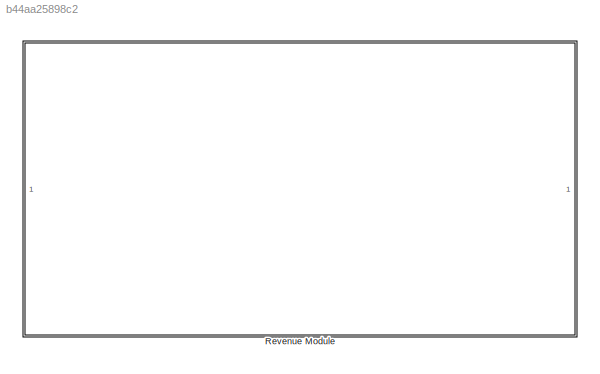
MODEL slx_b44aa25898c2
KIND library
CONFIG AbsTol = auto
CONFIG EnableMultiTasking = off
CONFIG FixedStep = auto
CONFIG MaxStep = auto
CONFIG MinStep = auto
CONFIG RelTol = 1e-3
CONFIG SampleTimeConstraint = Unconstrained
CONFIG SolverName = VariableStepAuto
CONFIG StartTime = 0.0
CONFIG StopTime = 10.0
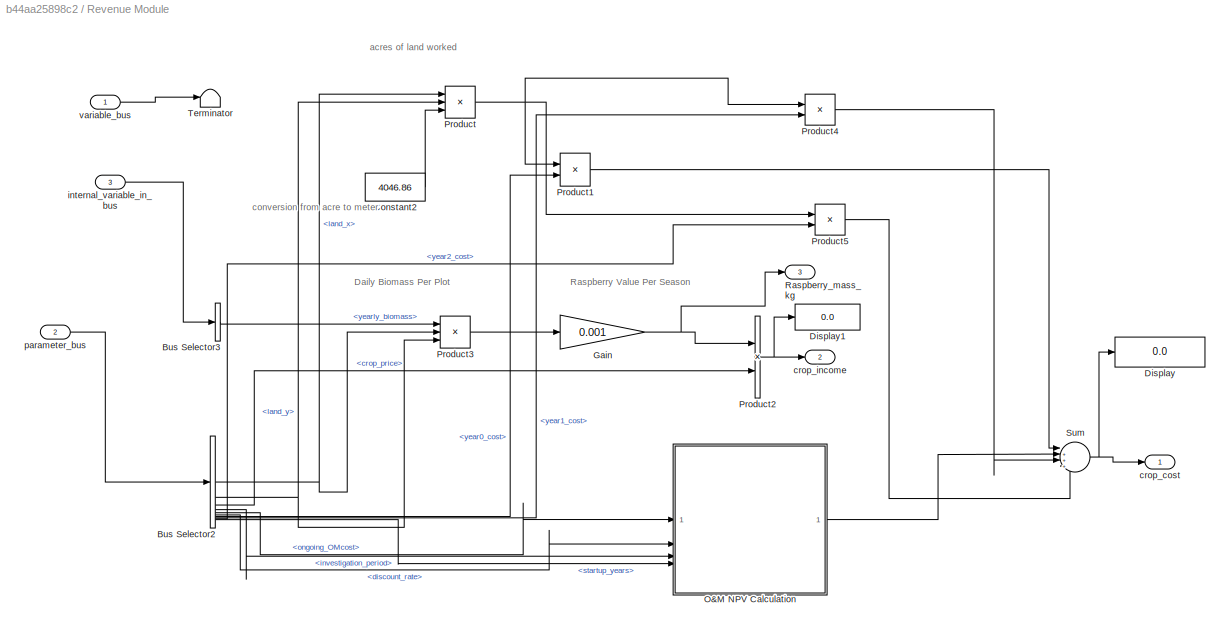
BLOCK [SubSystem] Revenue Module
BLOCK [BusSelector] Revenue Module/Bus Selector2
  OutputSignals = land_x,land_y,crop_price,investigation_period,ongoing_OMcost,discount_rate,year0_cost,year1_cost,year2_cost,startup_years
BLOCK [BusSelector] Revenue Module/Bus Selector3
  OutputSignals = yearly_biomass
BLOCK [Constant] Revenue Module/Constant2
  Value = 4046.86
BLOCK [Display] Revenue Module/Display
  Decimation = 1
BLOCK [Display] Revenue Module/Display1
  Decimation = 1
BLOCK [Gain] Revenue Module/Gain
  Gain = 0.001
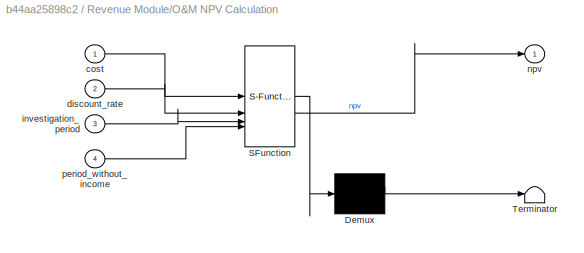
BLOCK [SubSystem] Revenue Module/O&M NPV Calculation
  ErrorFcn = Stateflow.Translate.translate
  PermitHierarchicalResolution = ExplicitOnly
  SFBlockType = MATLAB Function
  TreatAsAtomicUnit = on
BLOCK [Demux] Revenue Module/O&M NPV Calculation/ Demux 
  Outputs = 1
BLOCK [S-Function] Revenue Module/O&M NPV Calculation/ SFunction 
  EnableBusSupport = off
  FunctionName = sf_sfun
  PortCounts = [4 2]
  SFcnIsStateOwnerBlock = off
  SFunctionDeploymentMode = off
  Tag = Stateflow S-Function 4
BLOCK [Terminator] Revenue Module/O&M NPV Calculation/ Terminator 
BLOCK [Inport] Revenue Module/O&M NPV Calculation/cost
BLOCK [Inport] Revenue Module/O&M NPV Calculation/discount_rate
  Port = 2
BLOCK [Inport] Revenue Module/O&M NPV Calculation/investigation_period
  Port = 3
BLOCK [Outport] Revenue Module/O&M NPV Calculation/npv
BLOCK [Inport] Revenue Module/O&M NPV Calculation/period_without_income
  Port = 4
BLOCK [Product] Revenue Module/Product
  Inputs = **/
BLOCK [Product] Revenue Module/Product1
BLOCK [Product] Revenue Module/Product2
BLOCK [Product] Revenue Module/Product3
  Inputs = 3
BLOCK [Product] Revenue Module/Product4
BLOCK [Product] Revenue Module/Product5
BLOCK [Outport] Revenue Module/Raspberry_mass_kg
  Port = 3
BLOCK [Sum] Revenue Module/Sum
  Inputs = |++++
BLOCK [Terminator] Revenue Module/Terminator
BLOCK [Outport] Revenue Module/crop_cost
BLOCK [Outport] Revenue Module/crop_income
  Port = 2
BLOCK [Inport] Revenue Module/internal_variable_in_bus
  Port = 3
BLOCK [Inport] Revenue Module/parameter_bus
  Port = 2
BLOCK [Inport] Revenue Module/variable_bus
ANNOTATION Revenue Module: Daily Biomass Per Plot
ANNOTATION Revenue Module: Raspberry Value Per Season
ANNOTATION Revenue Module: acres of land worked
ANNOTATION Revenue Module: conversion from acre to meter
NET Revenue Module/Bus Selector2:1 -> Revenue Module/Product3:2, Revenue Module/Product:1
LINE Revenue Module/Bus Selector2:10 -> Revenue Module/O&M NPV Calculation:4
NET Revenue Module/Bus Selector2:2 -> Revenue Module/Product3:3, Revenue Module/Product:2
LINE Revenue Module/Bus Selector2:3 -> Revenue Module/Product2:2
LINE Revenue Module/Bus Selector2:4 -> Revenue Module/O&M NPV Calculation:3
LINE Revenue Module/Bus Selector2:5 -> Revenue Module/O&M NPV Calculation:1
LINE Revenue Module/Bus Selector2:6 -> Revenue Module/O&M NPV Calculation:2
LINE Revenue Module/Bus Selector2:7 -> Revenue Module/Product1:2
LINE Revenue Module/Bus Selector2:8 -> Revenue Module/Product4:2
LINE Revenue Module/Bus Selector2:9 -> Revenue Module/Product5:2
LINE Revenue Module/Bus Selector3:1 -> Revenue Module/Product3:1
LINE Revenue Module/Constant2:1 -> Revenue Module/Product:3
NET Revenue Module/Gain:1 -> Revenue Module/Product2:1, Revenue Module/Raspberry_mass_kg:1
LINE Revenue Module/O&M NPV Calculation:1 -> Revenue Module/Sum:2
LINE Revenue Module/Product1:1 -> Revenue Module/Sum:1
NET Revenue Module/Product2:1 -> Revenue Module/Display1:1, Revenue Module/crop_income:1
LINE Revenue Module/Product3:1 -> Revenue Module/Gain:1
LINE Revenue Module/Product4:1 -> Revenue Module/Sum:3
LINE Revenue Module/Product5:1 -> Revenue Module/Sum:4
NET Revenue Module/Product:1 -> Revenue Module/Product1:1, Revenue Module/Product4:1, Revenue Module/Product5:1
NET Revenue Module/Sum:1 -> Revenue Module/Display:1, Revenue Module/crop_cost:1
LINE Revenue Module/internal_variable_in_bus:1 -> Revenue Module/Bus Selector3:1
LINE Revenue Module/parameter_bus:1 -> Revenue Module/Bus Selector2:1
LINE Revenue Module/variable_bus:1 -> Revenue Module/Terminator:1
note: NET lines group one-source signal fan-out (src -> all destinations, sorted); 1:1 wires keep LINE
CHART Revenue Module/O&M NPV Calculation states=1 transitions=1
  STATE_LABEL 'eML_blk_kernel()'
  STATE_LABEL 'SCRIPT:\nfunction npv = calc_discounted_cash_flow(cost, discount_rate, investigation_period,period_without_income)\n    exponent_value = period_without_income:investigation_period-1;\n    npv = sum(cost ./ (1 + discount_rate).^exponent_value);\nend\n'
CHART  states=0 transitions=0
